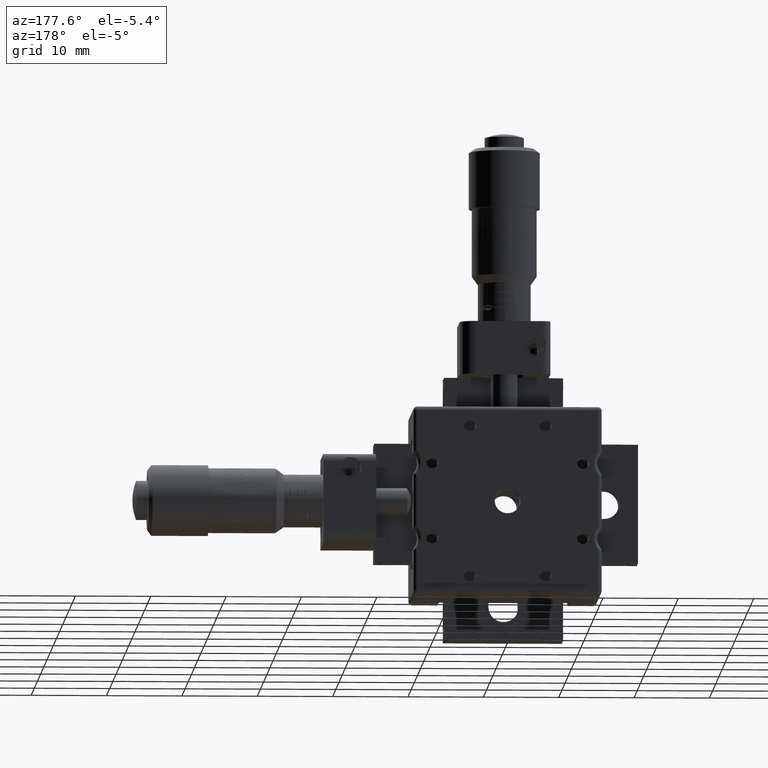
[diagram: clean part render]
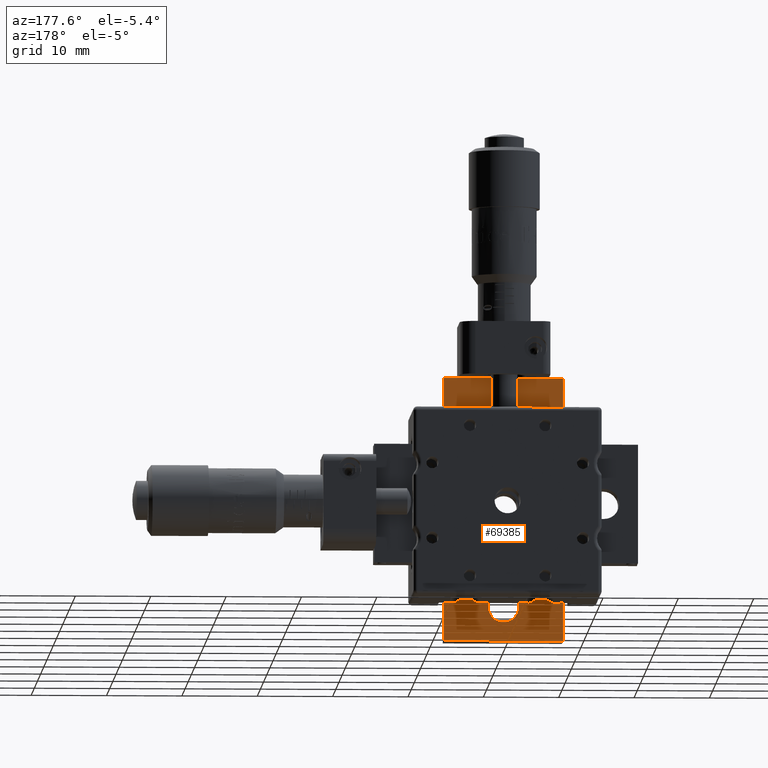
[diagram: same view with one face highlighted and labeled with its STEP entity id]
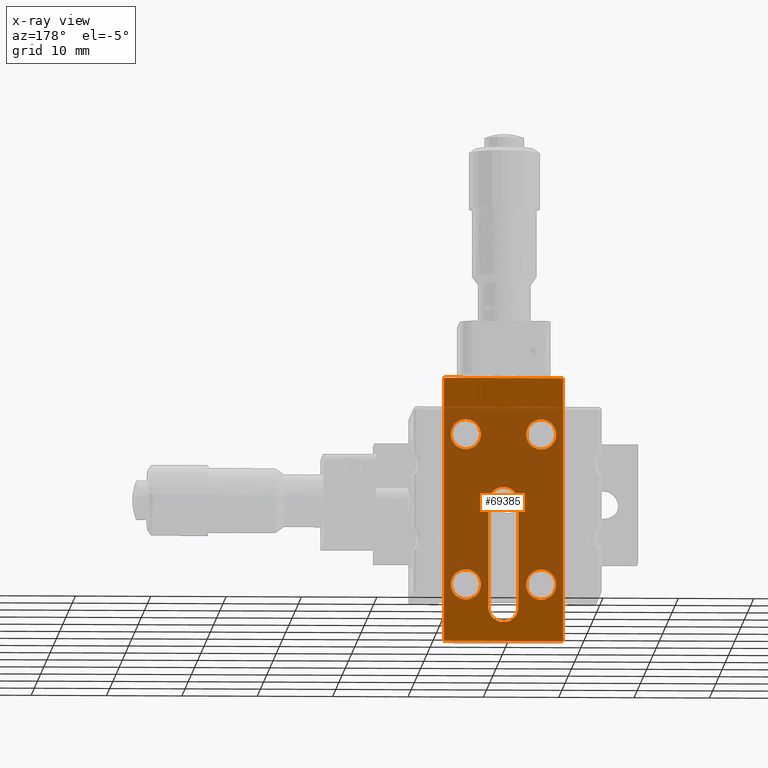
[diagram: x-ray of the same camera — body ghosted, the highlighted face saturated]
A machine part, auxiliary view. The second image highlights one B-rep face of the part: STEP entity #69385.
The next image is the same camera in x-ray: the body ghosted, the highlighted face saturated — about 68% of this face is hidden behind the body in this view.
In plain terms, the highlighted planar face has unit normal (0, -1, -0).
Its self-contained STEP definition (entity closure, byte-faithful):
#145 = EDGE_CURVE ( 'NONE', #37358, #63715, #61025, .T. ) ;
#957 = CARTESIAN_POINT ( 'NONE',  ( -2.000000000000001300, 3.799999999999998900, 0.9999999999999904500 ) ) ;
#1078 = LINE ( 'NONE', #22440, #40165 ) ;
#2120 = DIRECTION ( 'NONE',  ( -5.605193857299268300E-045, 1.000000000000000000, -1.387778780781445900E-015 ) ) ;
#2434 = AXIS2_PLACEMENT_3D ( 'NONE', #40602, #51070, #40124 ) ;
#2894 = CARTESIAN_POINT ( 'NONE',  ( -7.900000000000002100, 3.799999999999978500, 17.49999999999997900 ) ) ;
#4065 = EDGE_CURVE ( 'NONE', #15539, #37358, #1078, .T. ) ;
#4465 = VERTEX_POINT ( 'NONE', #31210 ) ;
#4637 = FACE_BOUND ( 'NONE', #66947, .T. ) ;
#5978 = VERTEX_POINT ( 'NONE', #22769 ) ;
#6322 = FACE_BOUND ( 'NONE', #62011, .T. ) ;
#6496 = VERTEX_POINT ( 'NONE', #16479 ) ;
#6947 = AXIS2_PLACEMENT_3D ( 'NONE', #45111, #33708, #12349 ) ;
#7125 = CARTESIAN_POINT ( 'NONE',  ( -7.900000000000002100, 3.799999999999978500, 17.54999999999997900 ) ) ;
#7728 = VERTEX_POINT ( 'NONE', #10409 ) ;
#7806 = EDGE_CURVE ( 'NONE', #17007, #36711, #68953, .T. ) ;
#7873 = CARTESIAN_POINT ( 'NONE',  ( 4.999999999999999100, 3.800000000000015800, -8.000000000000005300 ) ) ;
#7994 = DIRECTION ( 'NONE',  ( -5.605193857299268300E-045, 1.000000000000000000, -1.387778780781445900E-015 ) ) ;
#8302 = ORIENTED_EDGE ( 'NONE', *, *, #37303, .F. ) ;
#8601 = DIRECTION ( 'NONE',  ( 0.0000000000000000000, -1.084202172485504800E-015, 1.000000000000000000 ) ) ;
#9224 = DIRECTION ( 'NONE',  ( -5.605193857299268300E-045, 1.000000000000000000, -1.387778780781445900E-015 ) ) ;
#9782 = CARTESIAN_POINT ( 'NONE',  ( 4.999999999999999100, 3.800000000000013100, -10.00000000000000500 ) ) ;
#10266 = DIRECTION ( 'NONE',  ( -5.605193857299268300E-045, 1.000000000000000000, -1.387778780781445900E-015 ) ) ;
#10409 = CARTESIAN_POINT ( 'NONE',  ( 7.900000000000000400, 3.800000000000020700, -17.50000000000005000 ) ) ;
#11295 = CIRCLE ( 'NONE', #20304, 2.000000000000000000 ) ;
#11599 = EDGE_CURVE ( 'NONE', #20335, #17007, #12747, .T. ) ;
#11745 = VERTEX_POINT ( 'NONE', #14375 ) ;
#12227 = EDGE_LOOP ( 'NONE', ( #62273, #12358 ) ) ;
#12349 = DIRECTION ( 'NONE',  ( 0.0000000000000000000, -1.084202172485504400E-015, 1.000000000000000000 ) ) ;
#12358 = ORIENTED_EDGE ( 'NONE', *, *, #58316, .F. ) ;
#12747 = CIRCLE ( 'NONE', #52508, 2.000000000000000000 ) ;
#12961 = CARTESIAN_POINT ( 'NONE',  ( 7.900000000000000400, 3.799999999999978500, 17.54999999999995500 ) ) ;
#13065 = CARTESIAN_POINT ( 'NONE',  ( -4.999999999999998200, 3.799999999999987800, 10.00000000000000200 ) ) ;
#13200 = AXIS2_PLACEMENT_3D ( 'NONE', #13065, #67522, #51327 ) ;
#13381 = VECTOR ( 'NONE', #38303, 1000.000000000000000 ) ;
#14247 = ORIENTED_EDGE ( 'NONE', *, *, #28327, .F. ) ;
#14375 = CARTESIAN_POINT ( 'NONE',  ( -4.999999999999998200, 3.799999999999990500, 12.00000000000000200 ) ) ;
#15539 = VERTEX_POINT ( 'NONE', #57094 ) ;
#16479 = CARTESIAN_POINT ( 'NONE',  ( -4.999999999999998200, 3.799999999999985200, 8.000000000000001800 ) ) ;
#16567 = DIRECTION ( 'NONE',  ( -9.293161478447181700E-017, -1.110223024625156700E-015, 1.000000000000000000 ) ) ;
#17007 = VERTEX_POINT ( 'NONE', #62962 ) ;
#17229 = DIRECTION ( 'NONE',  ( 0.0000000000000000000, -1.084202172485504400E-015, 1.000000000000000000 ) ) ;
#18654 = DIRECTION ( 'NONE',  ( 0.0000000000000000000, 1.110223024625156700E-015, -1.000000000000000000 ) ) ;
#19395 = EDGE_CURVE ( 'NONE', #43059, #47893, #31715, .T. ) ;
#19591 = ORIENTED_EDGE ( 'NONE', *, *, #65512, .F. ) ;
#19707 = ORIENTED_EDGE ( 'NONE', *, *, #42039, .F. ) ;
#20304 = AXIS2_PLACEMENT_3D ( 'NONE', #49779, #33848, #17229 ) ;
#20335 = VERTEX_POINT ( 'NONE', #58129 ) ;
#22440 = CARTESIAN_POINT ( 'NONE',  ( 7.900000000000000400, 3.799999999999978500, 17.49999999999995400 ) ) ;
#22769 = CARTESIAN_POINT ( 'NONE',  ( 1.999999999999997800, 3.799999999999998900, 0.9999999999999920100 ) ) ;
#23034 = DIRECTION ( 'NONE',  ( 0.0000000000000000000, 1.110223024625156700E-015, -1.000000000000000000 ) ) ;
#25098 = DIRECTION ( 'NONE',  ( 0.0000000000000000000, -1.084202172485504400E-015, 1.000000000000000000 ) ) ;
#25875 = VECTOR ( 'NONE', #18654, 1000.000000000000000 ) ;
#26044 = CIRCLE ( 'NONE', #47017, 1.999999999999999100 ) ;
#26580 = EDGE_CURVE ( 'NONE', #15539, #7728, #30981, .T. ) ;
#27114 = CIRCLE ( 'NONE', #49248, 2.000000000000000000 ) ;
#28038 = ORIENTED_EDGE ( 'NONE', *, *, #42481, .F. ) ;
#28234 = DIRECTION ( 'NONE',  ( 5.605193857299268300E-045, -1.000000000000000000, -1.110223024625156700E-015 ) ) ;
#28327 = EDGE_CURVE ( 'NONE', #34785, #29839, #11295, .T. ) ;
#29127 = CARTESIAN_POINT ( 'NONE',  ( 7.900000000000000400, 3.799999999999978500, 17.54999999999995500 ) ) ;
#29306 = CARTESIAN_POINT ( 'NONE',  ( 5.000000000000001800, 3.799999999999985200, 7.999999999999998200 ) ) ;
#29839 = VERTEX_POINT ( 'NONE', #59075 ) ;
#30194 = AXIS2_PLACEMENT_3D ( 'NONE', #67254, #2120, #56988 ) ;
#30318 = DIRECTION ( 'NONE',  ( 0.0000000000000000000, -1.084202172485504400E-015, 1.000000000000000000 ) ) ;
#30334 = EDGE_LOOP ( 'NONE', ( #28038, #8302, #59605, #35725, #45213 ) ) ;
#30981 = LINE ( 'NONE', #29127, #25875 ) ;
#31210 = CARTESIAN_POINT ( 'NONE',  ( -5.000000000000000900, 3.800000000000015800, -8.000000000000001800 ) ) ;
#31498 = VECTOR ( 'NONE', #16567, 1000.000000000000000 ) ;
#31715 = CIRCLE ( 'NONE', #2434, 2.000000000000000000 ) ;
#31718 = DIRECTION ( 'NONE',  ( 0.0000000000000000000, -1.084202172485504800E-015, 1.000000000000000000 ) ) ;
#32768 = EDGE_CURVE ( 'NONE', #11745, #6496, #55871, .T. ) ;
#32947 = ORIENTED_EDGE ( 'NONE', *, *, #44151, .F. ) ;
#33471 = CIRCLE ( 'NONE', #69160, 2.000000000000000000 ) ;
#33518 = FACE_OUTER_BOUND ( 'NONE', #67712, .T. ) ;
#33708 = DIRECTION ( 'NONE',  ( -5.605193857299268300E-045, 1.000000000000000000, -1.387778780781445900E-015 ) ) ;
#33848 = DIRECTION ( 'NONE',  ( -5.605193857299268300E-045, 1.000000000000000000, -1.387778780781445900E-015 ) ) ;
#33911 = ORIENTED_EDGE ( 'NONE', *, *, #19395, .F. ) ;
#34785 = VERTEX_POINT ( 'NONE', #29306 ) ;
#34850 = CIRCLE ( 'NONE', #30194, 2.000000000000000000 ) ;
#35247 = ORIENTED_EDGE ( 'NONE', *, *, #50084, .F. ) ;
#35725 = ORIENTED_EDGE ( 'NONE', *, *, #7806, .F. ) ;
#36711 = VERTEX_POINT ( 'NONE', #957 ) ;
#37076 = EDGE_CURVE ( 'NONE', #36711, #63095, #26044, .T. ) ;
#37303 = EDGE_CURVE ( 'NONE', #63095, #5978, #45521, .T. ) ;
#37358 = VERTEX_POINT ( 'NONE', #2894 ) ;
#38303 = DIRECTION ( 'NONE',  ( 1.000000000000000000, 0.0000000000000000000, -0.0000000000000000000 ) ) ;
#39314 = DIRECTION ( 'NONE',  ( -1.000000000000000000, 0.0000000000000000000, 0.0000000000000000000 ) ) ;
#39411 = ORIENTED_EDGE ( 'NONE', *, *, #145, .F. ) ;
#40124 = DIRECTION ( 'NONE',  ( 0.0000000000000000000, -1.084202172485504400E-015, 1.000000000000000000 ) ) ;
#40165 = VECTOR ( 'NONE', #39314, 1000.000000000000000 ) ;
#40602 = CARTESIAN_POINT ( 'NONE',  ( 4.999999999999999100, 3.800000000000013100, -10.00000000000000500 ) ) ;
#41370 = EDGE_LOOP ( 'NONE', ( #35247, #67125 ) ) ;
#41989 = DIRECTION ( 'NONE',  ( 0.0000000000000000000, -1.084202172485504400E-015, 1.000000000000000000 ) ) ;
#42019 = FACE_BOUND ( 'NONE', #41370, .T. ) ;
#42039 = EDGE_CURVE ( 'NONE', #47893, #43059, #58210, .T. ) ;
#42481 = EDGE_CURVE ( 'NONE', #5978, #20335, #50641, .T. ) ;
#42696 = DIRECTION ( 'NONE',  ( 1.548860246407863600E-016, 1.110223024625156700E-015, -1.000000000000000000 ) ) ;
#43059 = VERTEX_POINT ( 'NONE', #7873 ) ;
#43406 = CARTESIAN_POINT ( 'NONE',  ( -2.000000000000000000, 3.800000000000011400, -13.00000000000000200 ) ) ;
#44151 = EDGE_CURVE ( 'NONE', #29839, #34785, #33471, .T. ) ;
#45111 = CARTESIAN_POINT ( 'NONE',  ( -5.000000000000000900, 3.800000000000013100, -10.00000000000000200 ) ) ;
#45213 = ORIENTED_EDGE ( 'NONE', *, *, #11599, .F. ) ;
#45521 = CIRCLE ( 'NONE', #52587, 1.999999999999999100 ) ;
#46124 = CARTESIAN_POINT ( 'NONE',  ( -1.775737858763660200E-015, 3.799999999999998900, 0.9999999999999920100 ) ) ;
#47017 = AXIS2_PLACEMENT_3D ( 'NONE', #69767, #64305, #31718 ) ;
#47463 = CIRCLE ( 'NONE', #6947, 2.000000000000000000 ) ;
#47893 = VERTEX_POINT ( 'NONE', #50529 ) ;
#47917 = CARTESIAN_POINT ( 'NONE',  ( 2.000000000000000000, 3.800000000000011400, -13.00000000000000200 ) ) ;
#47969 = FACE_BOUND ( 'NONE', #12227, .T. ) ;
#48877 = ORIENTED_EDGE ( 'NONE', *, *, #4065, .F. ) ;
#49248 = AXIS2_PLACEMENT_3D ( 'NONE', #69624, #9224, #41989 ) ;
#49501 = AXIS2_PLACEMENT_3D ( 'NONE', #12961, #28234, #50763 ) ;
#49779 = CARTESIAN_POINT ( 'NONE',  ( 5.000000000000001800, 3.799999999999987800, 9.999999999999998200 ) ) ;
#50084 = EDGE_CURVE ( 'NONE', #6496, #11745, #34850, .T. ) ;
#50529 = CARTESIAN_POINT ( 'NONE',  ( 4.999999999999999100, 3.800000000000010500, -12.00000000000000500 ) ) ;
#50544 = FACE_BOUND ( 'NONE', #30334, .T. ) ;
#50641 = LINE ( 'NONE', #47917, #60014 ) ;
#50763 = DIRECTION ( 'NONE',  ( -0.0000000000000000000, -1.110223024625156700E-015, 1.000000000000000000 ) ) ;
#51070 = DIRECTION ( 'NONE',  ( -5.605193857299268300E-045, 1.000000000000000000, -1.387778780781445900E-015 ) ) ;
#51327 = DIRECTION ( 'NONE',  ( 0.0000000000000000000, -1.084202172485504400E-015, 1.000000000000000000 ) ) ;
#51443 = DIRECTION ( 'NONE',  ( -5.605193857299268300E-045, 1.000000000000000000, -1.387778780781445900E-015 ) ) ;
#51736 = AXIS2_PLACEMENT_3D ( 'NONE', #9782, #10266, #58963 ) ;
#52508 = AXIS2_PLACEMENT_3D ( 'NONE', #63124, #51443, #30318 ) ;
#52587 = AXIS2_PLACEMENT_3D ( 'NONE', #46124, #57055, #8601 ) ;
#55871 = CIRCLE ( 'NONE', #13200, 2.000000000000000000 ) ;
#56221 = CARTESIAN_POINT ( 'NONE',  ( -5.000000000000000900, 3.800000000000010500, -12.00000000000000200 ) ) ;
#56988 = DIRECTION ( 'NONE',  ( 0.0000000000000000000, -1.084202172485504400E-015, 1.000000000000000000 ) ) ;
#57055 = DIRECTION ( 'NONE',  ( -5.605193857299268300E-045, 1.000000000000000000, -1.387778780781445900E-015 ) ) ;
#57094 = CARTESIAN_POINT ( 'NONE',  ( 7.900000000000000400, 3.799999999999978500, 17.49999999999995400 ) ) ;
#57394 = CARTESIAN_POINT ( 'NONE',  ( 5.000000000000001800, 3.799999999999987800, 9.999999999999998200 ) ) ;
#57561 = LINE ( 'NONE', #65166, #13381 ) ;
#58129 = CARTESIAN_POINT ( 'NONE',  ( 2.000000000000000000, 3.800000000000011400, -13.00000000000000200 ) ) ;
#58210 = CIRCLE ( 'NONE', #51736, 2.000000000000000000 ) ;
#58316 = EDGE_CURVE ( 'NONE', #4465, #66054, #27114, .T. ) ;
#58963 = DIRECTION ( 'NONE',  ( 0.0000000000000000000, -1.084202172485504400E-015, 1.000000000000000000 ) ) ;
#59075 = CARTESIAN_POINT ( 'NONE',  ( 5.000000000000001800, 3.799999999999990500, 11.99999999999999800 ) ) ;
#59605 = ORIENTED_EDGE ( 'NONE', *, *, #37076, .F. ) ;
#60014 = VECTOR ( 'NONE', #42696, 1000.000000000000000 ) ;
#61025 = LINE ( 'NONE', #7125, #62746 ) ;
#61456 = PLANE ( 'NONE',  #49501 ) ;
#62011 = EDGE_LOOP ( 'NONE', ( #19707, #33911 ) ) ;
#62273 = ORIENTED_EDGE ( 'NONE', *, *, #64277, .F. ) ;
#62746 = VECTOR ( 'NONE', #23034, 1000.000000000000000 ) ;
#62962 = CARTESIAN_POINT ( 'NONE',  ( -2.000000000000000000, 3.800000000000011400, -13.00000000000000200 ) ) ;
#63095 = VERTEX_POINT ( 'NONE', #69744 ) ;
#63103 = ORIENTED_EDGE ( 'NONE', *, *, #26580, .T. ) ;
#63124 = CARTESIAN_POINT ( 'NONE',  ( -1.925929944387235900E-031, 3.800000000000011400, -13.00000000000000200 ) ) ;
#63715 = VERTEX_POINT ( 'NONE', #64365 ) ;
#64277 = EDGE_CURVE ( 'NONE', #66054, #4465, #47463, .T. ) ;
#64305 = DIRECTION ( 'NONE',  ( -5.605193857299268300E-045, 1.000000000000000000, -1.387778780781445900E-015 ) ) ;
#64365 = CARTESIAN_POINT ( 'NONE',  ( -7.900000000000002100, 3.800000000000020700, -17.50000000000002500 ) ) ;
#65166 = CARTESIAN_POINT ( 'NONE',  ( -7.900000000000002100, 3.800000000000020700, -17.50000000000002500 ) ) ;
#65512 = EDGE_CURVE ( 'NONE', #63715, #7728, #57561, .T. ) ;
#66054 = VERTEX_POINT ( 'NONE', #56221 ) ;
#66947 = EDGE_LOOP ( 'NONE', ( #14247, #32947 ) ) ;
#67125 = ORIENTED_EDGE ( 'NONE', *, *, #32768, .F. ) ;
#67254 = CARTESIAN_POINT ( 'NONE',  ( -4.999999999999998200, 3.799999999999987800, 10.00000000000000200 ) ) ;
#67522 = DIRECTION ( 'NONE',  ( -5.605193857299268300E-045, 1.000000000000000000, -1.387778780781445900E-015 ) ) ;
#67712 = EDGE_LOOP ( 'NONE', ( #48877, #63103, #19591, #39411 ) ) ;
#68953 = LINE ( 'NONE', #43406, #31498 ) ;
#69160 = AXIS2_PLACEMENT_3D ( 'NONE', #57394, #7994, #25098 ) ;
#69385 = ADVANCED_FACE ( 'NONE', ( #47969, #4637, #50544, #42019, #6322, #33518 ), #61456, .F. ) ;
#69624 = CARTESIAN_POINT ( 'NONE',  ( -5.000000000000000900, 3.800000000000013100, -10.00000000000000200 ) ) ;
#69744 = CARTESIAN_POINT ( 'NONE',  ( -1.775737858763661600E-015, 3.800000000000001600, 2.999999999999991600 ) ) ;
#69767 = CARTESIAN_POINT ( 'NONE',  ( -1.775737858763660200E-015, 3.799999999999998900, 0.9999999999999920100 ) ) ;